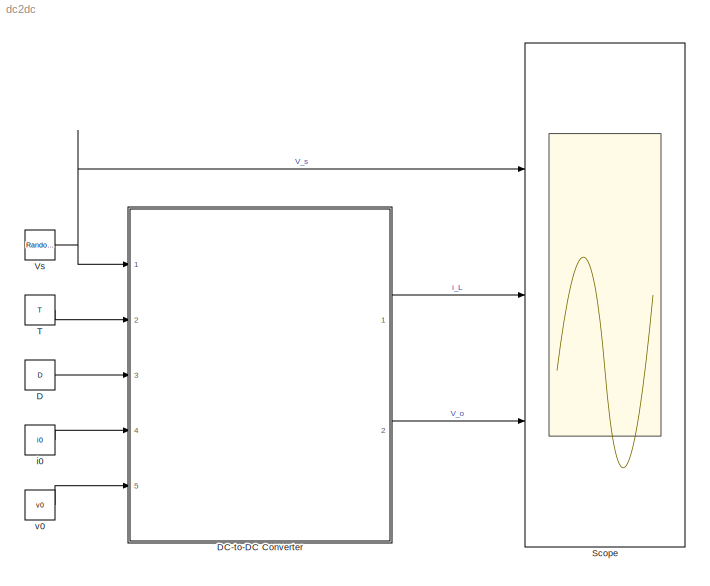
MODEL dc2dc
KIND model
BLOCK [Constant] D
  SID = 9
  Value = D
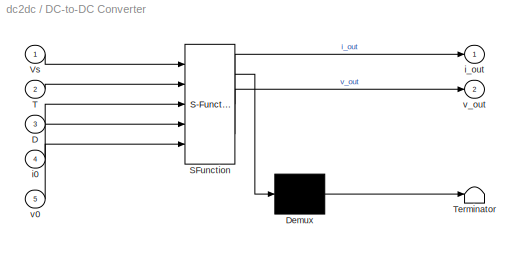
BLOCK [SubSystem] DC-to-DC Converter
  ErrorFcn = Stateflow.Translate.translate
  PermitHierarchicalResolution = ExplicitOnly
  Ports = [5, 2]
  RequestExecContextInheritance = off
  SFBlockType = Chart
  SID = 1
  TreatAsAtomicUnit = on
BLOCK [Demux] DC-to-DC Converter/ Demux 
  Outputs = 1
  Ports = [1, 1]
  SID = 1::65
BLOCK [S-Function] DC-to-DC Converter/ SFunction 
  EnableBusSupport = off
  FunctionName = sf_sfun
  Parameters = a00c,a00o,a01c,a01o,a10c,a10o,a11c,a11o,b0c,b0o,b1c,b1o
  PortCounts = [5 3]
  Ports = [5, 3]
  SFcnIsStateOwnerBlock = off
  SFunctionDeploymentMode = off
  SID = 1::64
  Tag = Stateflow S-Function 1
BLOCK [Terminator] DC-to-DC Converter/ Terminator 
  SID = 1::66
BLOCK [Inport] DC-to-DC Converter/D
  IconDisplay = Port number
  Port = 3
  SID = 1::60
BLOCK [Inport] DC-to-DC Converter/T
  IconDisplay = Port number
  Port = 2
  SID = 1::53
BLOCK [Inport] DC-to-DC Converter/Vs
  IconDisplay = Port number
  SID = 1::47
BLOCK [Inport] DC-to-DC Converter/i0
  IconDisplay = Port number
  Port = 4
  SID = 1::62
BLOCK [Outport] DC-to-DC Converter/i_out
  IconDisplay = Port number
  SID = 1::41
BLOCK [Inport] DC-to-DC Converter/v0
  IconDisplay = Port number
  Port = 5
  SID = 1::63
BLOCK [Outport] DC-to-DC Converter/v_out
  IconDisplay = Port number
  Port = 2
  SID = 1::42
BLOCK [Scope] Scope
  Floating = off
  NumInputPorts = 3
  Ports = [3]
  SID = 2
  ScopeSpecificationString = C++SS(StrPVP('Location','[911, 316, 1561, 793]'),StrPVP('Open','off'),StrPVP('ZoomMode','xonly'),MxPVP('AxesTitles',54,'struct(''axes1'',''Voltage Source (V)'',''axes2'',''i_L Current (A)'',''axes3'',''V_C Voltage (V)'')'),MxPVP('ScopeGraphics',57,'struct(''FigureColor'',''[1 1 1]'',''AxesColor'',''[1 1 1]'',''AxesTickColor'',''[0 0 0]'',''LineColors'',''[0 0 1;1 0 1;0 1 1;1 0 0;0 1 0;0 0 1]'',''L...<+472ch>
BLOCK [Constant] T
  SID = 10
  Value = T
BLOCK [RandomNumber] Vs
  Mean = Vs
  SID = 11
  SampleTime = T/10
  Variance = Vs_noise
BLOCK [Constant] i0
  SID = 12
  Value = i0
BLOCK [Constant] v0
  SID = 13
  Value = v0
LINE D:1 -> DC-to-DC Converter:3
LINE DC-to-DC Converter/ Demux :1 -> DC-to-DC Converter/ Terminator :1
LINE DC-to-DC Converter/ SFunction :1 -> DC-to-DC Converter/ Demux :1
LINE DC-to-DC Converter/ SFunction :2 -> DC-to-DC Converter/i_out:1
LINE DC-to-DC Converter/ SFunction :3 -> DC-to-DC Converter/v_out:1
LINE DC-to-DC Converter/D:1 -> DC-to-DC Converter/ SFunction :3
LINE DC-to-DC Converter/T:1 -> DC-to-DC Converter/ SFunction :2
LINE DC-to-DC Converter/Vs:1 -> DC-to-DC Converter/ SFunction :1
LINE DC-to-DC Converter/i0:1 -> DC-to-DC Converter/ SFunction :4
LINE DC-to-DC Converter/v0:1 -> DC-to-DC Converter/ SFunction :5
LINE DC-to-DC Converter:1 -> Scope:2
LINE DC-to-DC Converter:2 -> Scope:3
LINE T:1 -> DC-to-DC Converter:2
NET Vs:1 -> DC-to-DC Converter:1, Scope:1
LINE i0:1 -> DC-to-DC Converter:4
LINE v0:1 -> DC-to-DC Converter:5
note: NET lines group one-source signal fan-out (src -> all destinations, sorted); 1:1 wires keep LINE
CHART DC-to-DC Converter states=2 transitions=3
  STATE_LABEL 'Charging\\ndu:\\ni_dot = a00c*i+a01c*v+b0c*Vs;\\nv_dot = a10c*i+a11c*v+b1c*Vs;\\nt_dot = 1;\\ni_out = i;\\nv_out = v;'
  STATE_LABEL 'Discharging\\ndu:\\ni_dot = a00o*i+a01o*v+b0o*Vs;\\nv_dot = a10o*i+a11o*v+b1o*Vs;\\nt_dot = 1;\\ni_out = i;\\nv_out = v;'
